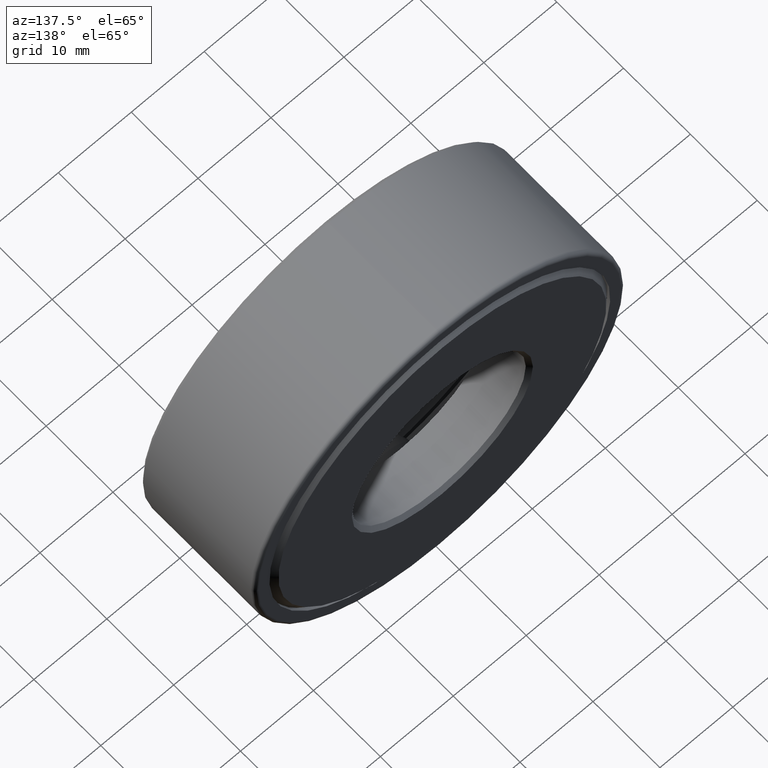
[diagram: clean part render]
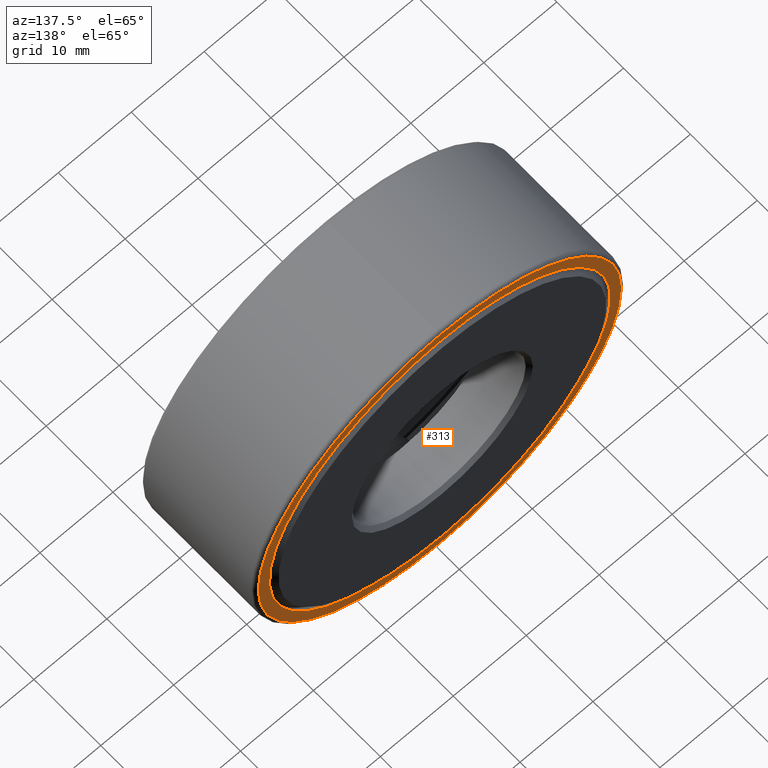
[diagram: same view with one face highlighted and labeled with its STEP entity id]
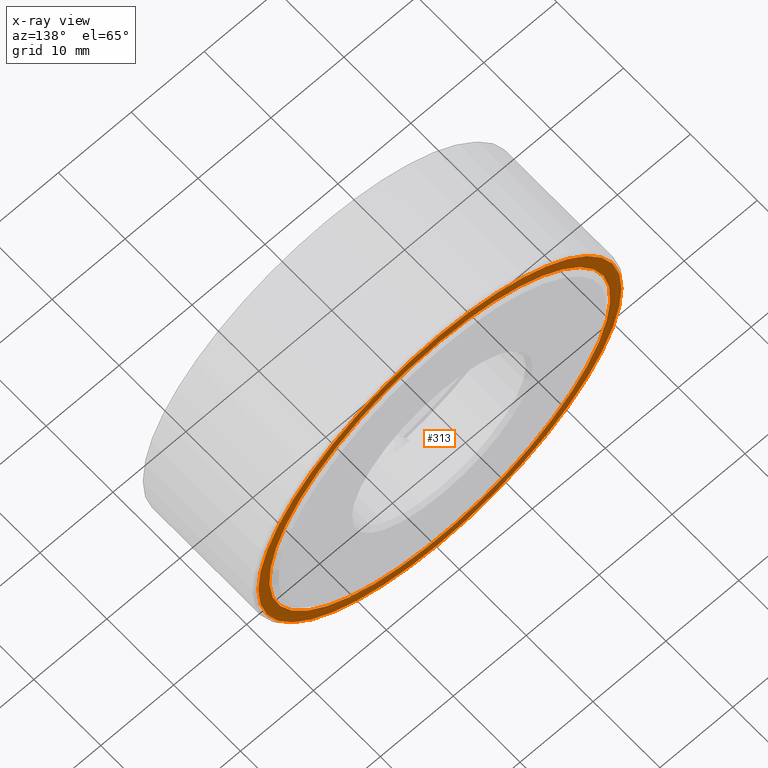
[diagram: x-ray of the same camera — body ghosted, the highlighted face saturated]
A machine part, auxiliary view. The second image highlights one B-rep face of the part: STEP entity #313.
The next image is the same camera in x-ray: the body ghosted, the highlighted face saturated — about 0% of this face is hidden behind the body in this view.
In plain terms, the highlighted planar face has unit normal (0, -1, 0).
Its self-contained STEP definition (entity closure, byte-faithful):
#49 = ORIENTED_EDGE ( 'NONE', *, *, #339, .T. ) ;
#52 = AXIS2_PLACEMENT_3D ( 'NONE', #84, #561, #323 ) ;
#69 = CARTESIAN_POINT ( 'NONE',  ( 0.0000000000000000000, 0.6724999999999998800, 0.0000000000000000000 ) ) ;
#84 = CARTESIAN_POINT ( 'NONE',  ( 0.0000000000000000000, 0.6724999999999998800, 0.0000000000000000000 ) ) ;
#85 = DIRECTION ( 'NONE',  ( 0.0000000000000000000, -0.0000000000000000000, -1.000000000000000000 ) ) ;
#125 = EDGE_LOOP ( 'NONE', ( #49 ) ) ;
#129 = FACE_OUTER_BOUND ( 'NONE', #125, .T. ) ;
#180 = EDGE_CURVE ( 'NONE', #284, #284, #230, .T. ) ;
#213 = CARTESIAN_POINT ( 'NONE',  ( 0.0000000000000000000, 0.6724999999999998800, 0.9200000000000000400 ) ) ;
#230 = CIRCLE ( 'NONE', #52, 0.9200000000000000400 ) ;
#255 = CARTESIAN_POINT ( 'NONE',  ( 0.0000000000000000000, 0.6724999999999998800, 0.9799999999999999800 ) ) ;
#261 = ORIENTED_EDGE ( 'NONE', *, *, #180, .F. ) ;
#284 = VERTEX_POINT ( 'NONE', #213 ) ;
#313 = ADVANCED_FACE ( 'NONE', ( #435, #129 ), #533, .F. ) ;
#323 = DIRECTION ( 'NONE',  ( 0.0000000000000000000, 0.0000000000000000000, 1.000000000000000000 ) ) ;
#339 = EDGE_CURVE ( 'NONE', #509, #509, #376, .T. ) ;
#376 = CIRCLE ( 'NONE', #566, 0.9799999999999999800 ) ;
#411 = CARTESIAN_POINT ( 'NONE',  ( 0.0000000000000000000, 0.6724999999999998800, 0.0000000000000000000 ) ) ;
#435 = FACE_BOUND ( 'NONE', #606, .T. ) ;
#456 = DIRECTION ( 'NONE',  ( -0.0000000000000000000, 1.000000000000000000, -0.0000000000000000000 ) ) ;
#457 = DIRECTION ( 'NONE',  ( 0.0000000000000000000, 0.0000000000000000000, 1.000000000000000000 ) ) ;
#461 = AXIS2_PLACEMENT_3D ( 'NONE', #69, #592, #85 ) ;
#509 = VERTEX_POINT ( 'NONE', #255 ) ;
#533 = PLANE ( 'NONE',  #461 ) ;
#561 = DIRECTION ( 'NONE',  ( -0.0000000000000000000, 1.000000000000000000, -0.0000000000000000000 ) ) ;
#566 = AXIS2_PLACEMENT_3D ( 'NONE', #411, #456, #457 ) ;
#592 = DIRECTION ( 'NONE',  ( 0.0000000000000000000, -1.000000000000000000, 0.0000000000000000000 ) ) ;
#606 = EDGE_LOOP ( 'NONE', ( #261 ) ) ;